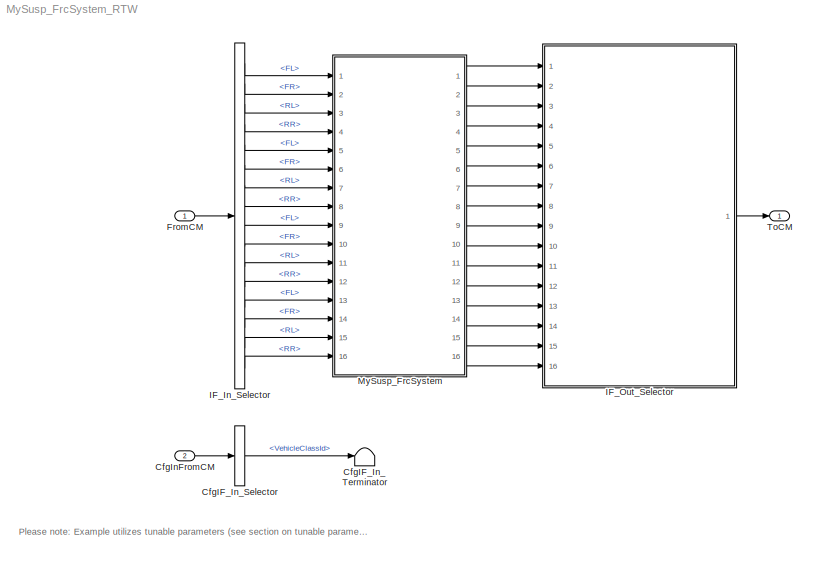
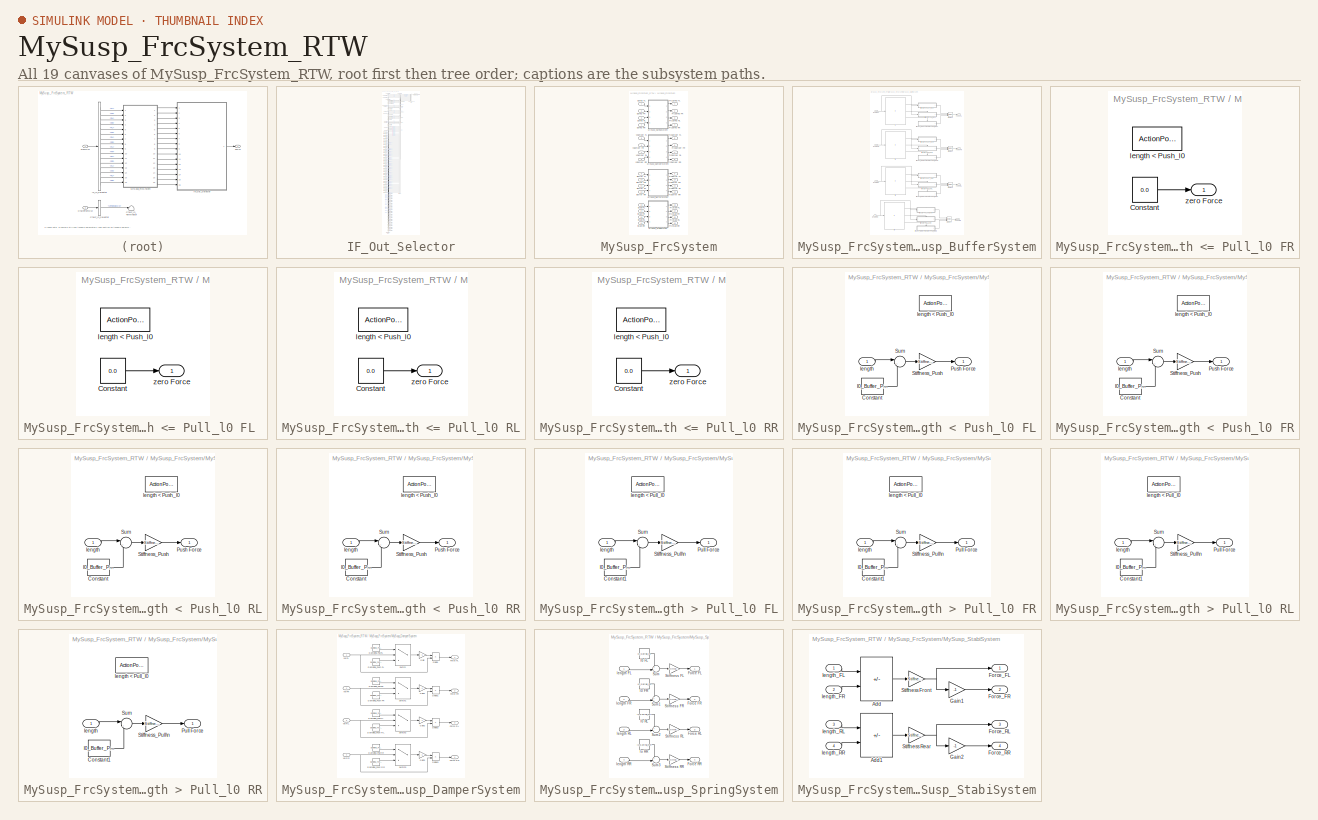
[diagram: thumbnail index - all 19 canvases of the model, root first then tree order]
MODEL MySusp_FrcSystem_RTW
KIND model
CONFIG InitFcn = vehicle = 'Car'; if ~length(which('cmself')), cmenv; end\nMySusp_FrcSystem_RTW_bus
CONFIG PreLoadFcn = vehicle = 'Car'; if ~length(which('cmself')), cmenv; end\nMySusp_FrcSystem_RTW_bus\nMySusp_FrcSystem_RTW_params
BLOCK [BusSelector] CfgIF_In_Selector
  OutputSignals = VehicleClassId
  Ports = [1, 1]
  SID = 9
BLOCK [Terminator] CfgIF_In_Terminator
  SID = 10
BLOCK [Inport] CfgInFromCM
  OutDataTypeStr = Bus: cmSusp_FrcSystemCfgIn
  Port = 2
  SID = 8
BLOCK [Inport] FromCM
  OutDataTypeStr = Bus: cmSusp_FrcSystemIn
  SID = 1
BLOCK [BusSelector] IF_In_Selector
  OutputSignals = lSpring.FL,lSpring.FR,lSpring.RL,lSpring.RR,vDamper.FL,vDamper.FR,vDamper.RL,vDamper.RR,lBuffer.FL,lBuffer.FR,lBuffer.RL,lBuffer.RR,lStabi.FL,lStabi.FR,lStabi.RL,lStabi.RR
  Ports = [1, 16]
  SID = 2
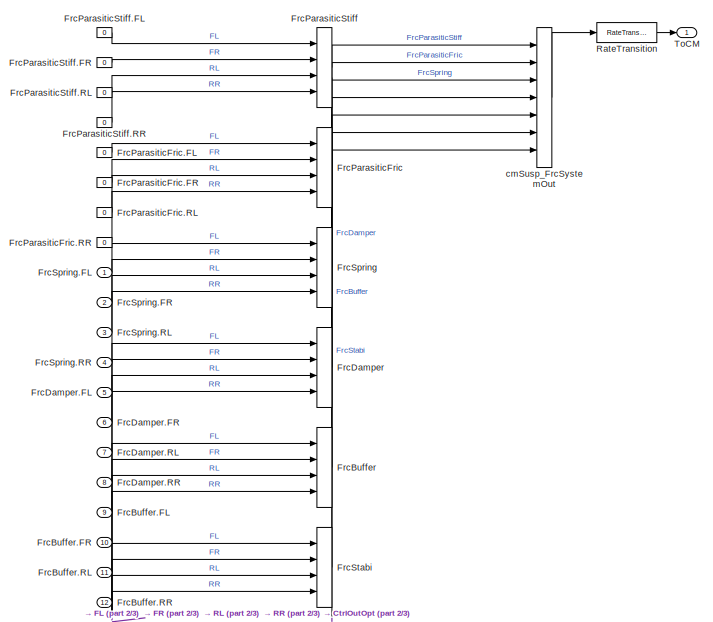
[diagram: IF_Out_Selector - part 1/3, full width, top band]
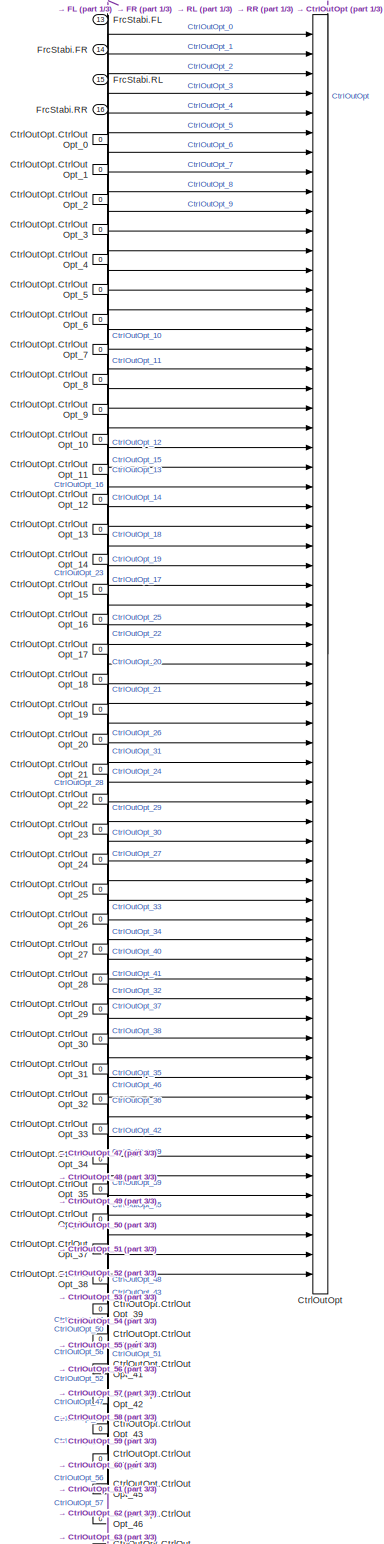
[diagram: IF_Out_Selector - part 2/3, middle left region]
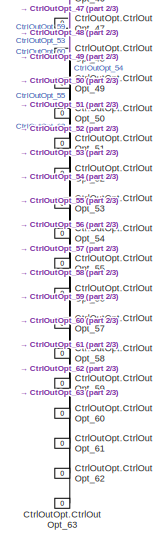
[diagram: IF_Out_Selector - part 3/3, bottom left region]
BLOCK [SubSystem] IF_Out_Selector
  OpenFcn = cmSignalSelect('SignalSelection_CB',gcb)
  Ports = [16, 1]
  RequestExecContextInheritance = off
  SID = 5
  UserData = DataTag0
  UserDataPersistent = on
BLOCK [BusCreator] IF_Out_Selector/CtrlOutOpt
  InheritFromInputs = on
  Inputs = 64
  Ports = [64, 1]
  SID = 42
BLOCK [Constant] IF_Out_Selector/CtrlOutOpt.CtrlOutOpt_0
  SID = 43
  Value = 0
BLOCK [Constant] IF_Out_Selector/CtrlOutOpt.CtrlOutOpt_1
  SID = 44
  Value = 0
BLOCK [Constant] IF_Out_Selector/CtrlOutOpt.CtrlOutOpt_10
  SID = 53
  Value = 0
BLOCK [Constant] IF_Out_Selector/CtrlOutOpt.CtrlOutOpt_11
  SID = 54
  Value = 0
BLOCK [Constant] IF_Out_Selector/CtrlOutOpt.CtrlOutOpt_12
  SID = 55
  Value = 0
BLOCK [Constant] IF_Out_Selector/CtrlOutOpt.CtrlOutOpt_13
  SID = 56
  Value = 0
BLOCK [Constant] IF_Out_Selector/CtrlOutOpt.CtrlOutOpt_14
  SID = 57
  Value = 0
BLOCK [Constant] IF_Out_Selector/CtrlOutOpt.CtrlOutOpt_15
  SID = 58
  Value = 0
BLOCK [Constant] IF_Out_Selector/CtrlOutOpt.CtrlOutOpt_16
  SID = 59
  Value = 0
BLOCK [Constant] IF_Out_Selector/CtrlOutOpt.CtrlOutOpt_17
  SID = 60
  Value = 0
BLOCK [Constant] IF_Out_Selector/CtrlOutOpt.CtrlOutOpt_18
  SID = 61
  Value = 0
BLOCK [Constant] IF_Out_Selector/CtrlOutOpt.CtrlOutOpt_19
  SID = 62
  Value = 0
BLOCK [Constant] IF_Out_Selector/CtrlOutOpt.CtrlOutOpt_2
  SID = 45
  Value = 0
BLOCK [Constant] IF_Out_Selector/CtrlOutOpt.CtrlOutOpt_20
  SID = 63
  Value = 0
BLOCK [Constant] IF_Out_Selector/CtrlOutOpt.CtrlOutOpt_21
  SID = 64
  Value = 0
BLOCK [Constant] IF_Out_Selector/CtrlOutOpt.CtrlOutOpt_22
  SID = 65
  Value = 0
BLOCK [Constant] IF_Out_Selector/CtrlOutOpt.CtrlOutOpt_23
  SID = 66
  Value = 0
BLOCK [Constant] IF_Out_Selector/CtrlOutOpt.CtrlOutOpt_24
  SID = 67
  Value = 0
BLOCK [Constant] IF_Out_Selector/CtrlOutOpt.CtrlOutOpt_25
  SID = 68
  Value = 0
BLOCK [Constant] IF_Out_Selector/CtrlOutOpt.CtrlOutOpt_26
  SID = 69
  Value = 0
BLOCK [Constant] IF_Out_Selector/CtrlOutOpt.CtrlOutOpt_27
  SID = 70
  Value = 0
BLOCK [Constant] IF_Out_Selector/CtrlOutOpt.CtrlOutOpt_28
  SID = 71
  Value = 0
BLOCK [Constant] IF_Out_Selector/CtrlOutOpt.CtrlOutOpt_29
  SID = 72
  Value = 0
BLOCK [Constant] IF_Out_Selector/CtrlOutOpt.CtrlOutOpt_3
  SID = 46
  Value = 0
BLOCK [Constant] IF_Out_Selector/CtrlOutOpt.CtrlOutOpt_30
  SID = 73
  Value = 0
BLOCK [Constant] IF_Out_Selector/CtrlOutOpt.CtrlOutOpt_31
  SID = 74
  Value = 0
BLOCK [Constant] IF_Out_Selector/CtrlOutOpt.CtrlOutOpt_32
  SID = 75
  Value = 0
BLOCK [Constant] IF_Out_Selector/CtrlOutOpt.CtrlOutOpt_33
  SID = 76
  Value = 0
BLOCK [Constant] IF_Out_Selector/CtrlOutOpt.CtrlOutOpt_34
  SID = 77
  Value = 0
BLOCK [Constant] IF_Out_Selector/CtrlOutOpt.CtrlOutOpt_35
  SID = 78
  Value = 0
BLOCK [Constant] IF_Out_Selector/CtrlOutOpt.CtrlOutOpt_36
  SID = 79
  Value = 0
BLOCK [Constant] IF_Out_Selector/CtrlOutOpt.CtrlOutOpt_37
  SID = 80
  Value = 0
BLOCK [Constant] IF_Out_Selector/CtrlOutOpt.CtrlOutOpt_38
  SID = 81
  Value = 0
BLOCK [Constant] IF_Out_Selector/CtrlOutOpt.CtrlOutOpt_39
  SID = 82
  Value = 0
BLOCK [Constant] IF_Out_Selector/CtrlOutOpt.CtrlOutOpt_4
  SID = 47
  Value = 0
BLOCK [Constant] IF_Out_Selector/CtrlOutOpt.CtrlOutOpt_40
  SID = 83
  Value = 0
BLOCK [Constant] IF_Out_Selector/CtrlOutOpt.CtrlOutOpt_41
  SID = 84
  Value = 0
BLOCK [Constant] IF_Out_Selector/CtrlOutOpt.CtrlOutOpt_42
  SID = 85
  Value = 0
BLOCK [Constant] IF_Out_Selector/CtrlOutOpt.CtrlOutOpt_43
  SID = 86
  Value = 0
BLOCK [Constant] IF_Out_Selector/CtrlOutOpt.CtrlOutOpt_44
  SID = 87
  Value = 0
BLOCK [Constant] IF_Out_Selector/CtrlOutOpt.CtrlOutOpt_45
  SID = 88
  Value = 0
BLOCK [Constant] IF_Out_Selector/CtrlOutOpt.CtrlOutOpt_46
  SID = 89
  Value = 0
BLOCK [Constant] IF_Out_Selector/CtrlOutOpt.CtrlOutOpt_47
  SID = 90
  Value = 0
BLOCK [Constant] IF_Out_Selector/CtrlOutOpt.CtrlOutOpt_48
  SID = 91
  Value = 0
BLOCK [Constant] IF_Out_Selector/CtrlOutOpt.CtrlOutOpt_49
  SID = 92
  Value = 0
BLOCK [Constant] IF_Out_Selector/CtrlOutOpt.CtrlOutOpt_5
  SID = 48
  Value = 0
BLOCK [Constant] IF_Out_Selector/CtrlOutOpt.CtrlOutOpt_50
  SID = 93
  Value = 0
BLOCK [Constant] IF_Out_Selector/CtrlOutOpt.CtrlOutOpt_51
  SID = 94
  Value = 0
BLOCK [Constant] IF_Out_Selector/CtrlOutOpt.CtrlOutOpt_52
  SID = 95
  Value = 0
BLOCK [Constant] IF_Out_Selector/CtrlOutOpt.CtrlOutOpt_53
  SID = 96
  Value = 0
BLOCK [Constant] IF_Out_Selector/CtrlOutOpt.CtrlOutOpt_54
  SID = 97
  Value = 0
BLOCK [Constant] IF_Out_Selector/CtrlOutOpt.CtrlOutOpt_55
  SID = 98
  Value = 0
BLOCK [Constant] IF_Out_Selector/CtrlOutOpt.CtrlOutOpt_56
  SID = 99
  Value = 0
BLOCK [Constant] IF_Out_Selector/CtrlOutOpt.CtrlOutOpt_57
  SID = 100
  Value = 0
BLOCK [Constant] IF_Out_Selector/CtrlOutOpt.CtrlOutOpt_58
  SID = 101
  Value = 0
BLOCK [Constant] IF_Out_Selector/CtrlOutOpt.CtrlOutOpt_59
  SID = 102
  Value = 0
BLOCK [Constant] IF_Out_Selector/CtrlOutOpt.CtrlOutOpt_6
  SID = 49
  Value = 0
BLOCK [Constant] IF_Out_Selector/CtrlOutOpt.CtrlOutOpt_60
  SID = 103
  Value = 0
BLOCK [Constant] IF_Out_Selector/CtrlOutOpt.CtrlOutOpt_61
  SID = 104
  Value = 0
BLOCK [Constant] IF_Out_Selector/CtrlOutOpt.CtrlOutOpt_62
  SID = 105
  Value = 0
BLOCK [Constant] IF_Out_Selector/CtrlOutOpt.CtrlOutOpt_63
  SID = 106
  Value = 0
BLOCK [Constant] IF_Out_Selector/CtrlOutOpt.CtrlOutOpt_7
  SID = 50
  Value = 0
BLOCK [Constant] IF_Out_Selector/CtrlOutOpt.CtrlOutOpt_8
  SID = 51
  Value = 0
BLOCK [Constant] IF_Out_Selector/CtrlOutOpt.CtrlOutOpt_9
  SID = 52
  Value = 0
BLOCK [BusCreator] IF_Out_Selector/FrcBuffer
  InheritFromInputs = on
  Inputs = 4
  Ports = [4, 1]
  SID = 32
BLOCK [Inport] IF_Out_Selector/FrcBuffer.FL
  Port = 9
  SID = 506
BLOCK [Inport] IF_Out_Selector/FrcBuffer.FR
  Port = 10
  SID = 507
BLOCK [Inport] IF_Out_Selector/FrcBuffer.RL
  Port = 11
  SID = 508
BLOCK [Inport] IF_Out_Selector/FrcBuffer.RR
  Port = 12
  SID = 509
BLOCK [BusCreator] IF_Out_Selector/FrcDamper
  InheritFromInputs = on
  Inputs = 4
  Ports = [4, 1]
  SID = 27
BLOCK [Inport] IF_Out_Selector/FrcDamper.FL
  Port = 5
  SID = 502
BLOCK [Inport] IF_Out_Selector/FrcDamper.FR
  Port = 6
  SID = 503
BLOCK [Inport] IF_Out_Selector/FrcDamper.RL
  Port = 7
  SID = 504
BLOCK [Inport] IF_Out_Selector/FrcDamper.RR
  Port = 8
  SID = 505
BLOCK [BusCreator] IF_Out_Selector/FrcParasiticFric
  InheritFromInputs = on
  Inputs = 4
  Ports = [4, 1]
  SID = 17
BLOCK [Constant] IF_Out_Selector/FrcParasiticFric.FL
  SID = 18
  Value = 0
BLOCK [Constant] IF_Out_Selector/FrcParasiticFric.FR
  SID = 19
  Value = 0
BLOCK [Constant] IF_Out_Selector/FrcParasiticFric.RL
  SID = 20
  Value = 0
BLOCK [Constant] IF_Out_Selector/FrcParasiticFric.RR
  SID = 21
  Value = 0
BLOCK [BusCreator] IF_Out_Selector/FrcParasiticStiff
  InheritFromInputs = on
  Inputs = 4
  Ports = [4, 1]
  SID = 12
BLOCK [Constant] IF_Out_Selector/FrcParasiticStiff.FL
  SID = 13
  Value = 0
BLOCK [Constant] IF_Out_Selector/FrcParasiticStiff.FR
  SID = 14
  Value = 0
BLOCK [Constant] IF_Out_Selector/FrcParasiticStiff.RL
  SID = 15
  Value = 0
BLOCK [Constant] IF_Out_Selector/FrcParasiticStiff.RR
  SID = 16
  Value = 0
BLOCK [BusCreator] IF_Out_Selector/FrcSpring
  InheritFromInputs = on
  Inputs = 4
  Ports = [4, 1]
  SID = 22
BLOCK [Inport] IF_Out_Selector/FrcSpring.FL
  SID = 498
BLOCK [Inport] IF_Out_Selector/FrcSpring.FR
  Port = 2
  SID = 499
BLOCK [Inport] IF_Out_Selector/FrcSpring.RL
  Port = 3
  SID = 500
BLOCK [Inport] IF_Out_Selector/FrcSpring.RR
  Port = 4
  SID = 501
BLOCK [BusCreator] IF_Out_Selector/FrcStabi
  InheritFromInputs = on
  Inputs = 4
  Ports = [4, 1]
  SID = 37
BLOCK [Inport] IF_Out_Selector/FrcStabi.FL
  Port = 13
  SID = 510
BLOCK [Inport] IF_Out_Selector/FrcStabi.FR
  Port = 14
  SID = 511
BLOCK [Inport] IF_Out_Selector/FrcStabi.RL
  Port = 15
  SID = 512
BLOCK [Inport] IF_Out_Selector/FrcStabi.RR
  Port = 16
  SID = 513
BLOCK [RateTransition] IF_Out_Selector/RateTransition
  OutPortSampleTime = str2num(get_param(bdroot,'FixedStep'))
  SID = 6
BLOCK [Outport] IF_Out_Selector/ToCM
  SID = 7
BLOCK [BusCreator] IF_Out_Selector/cmSusp_FrcSystemOut
  InheritFromInputs = on
  Inputs = 7
  Ports = [7, 1]
  SID = 11
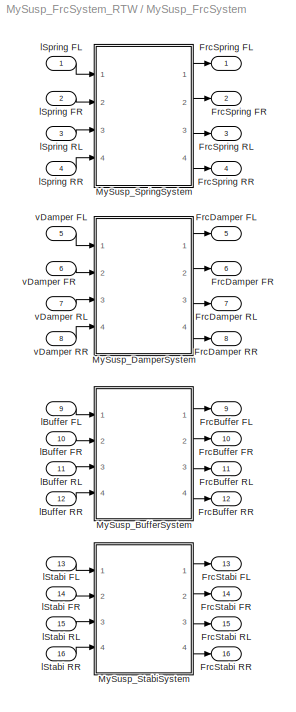
BLOCK [SubSystem] MySusp_FrcSystem
  Ports = [16, 16]
  RequestExecContextInheritance = off
  SID = 297
BLOCK [Outport] MySusp_FrcSystem/FrcBuffer FL
  Port = 9
  SID = 490
BLOCK [Outport] MySusp_FrcSystem/FrcBuffer FR
  Port = 10
  SID = 491
BLOCK [Outport] MySusp_FrcSystem/FrcBuffer RL
  Port = 11
  SID = 492
BLOCK [Outport] MySusp_FrcSystem/FrcBuffer RR
  Port = 12
  SID = 493
BLOCK [Outport] MySusp_FrcSystem/FrcDamper FL
  Port = 5
  SID = 486
BLOCK [Outport] MySusp_FrcSystem/FrcDamper FR
  Port = 6
  SID = 487
BLOCK [Outport] MySusp_FrcSystem/FrcDamper RL
  Port = 7
  SID = 488
BLOCK [Outport] MySusp_FrcSystem/FrcDamper RR
  Port = 8
  SID = 489
BLOCK [Outport] MySusp_FrcSystem/FrcSpring FL
  SID = 482
BLOCK [Outport] MySusp_FrcSystem/FrcSpring FR
  Port = 2
  SID = 483
BLOCK [Outport] MySusp_FrcSystem/FrcSpring RL
  Port = 3
  SID = 484
BLOCK [Outport] MySusp_FrcSystem/FrcSpring RR
  Port = 4
  SID = 485
BLOCK [Outport] MySusp_FrcSystem/FrcStabi FL
  Port = 13
  SID = 494
BLOCK [Outport] MySusp_FrcSystem/FrcStabi FR
  Port = 14
  SID = 495
BLOCK [Outport] MySusp_FrcSystem/FrcStabi RL
  Port = 15
  SID = 496
BLOCK [Outport] MySusp_FrcSystem/FrcStabi RR
  Port = 16
  SID = 497
BLOCK [SubSystem] MySusp_FrcSystem/MySusp_BufferSystem
  Ports = [4, 4]
  RequestExecContextInheritance = off
  SID = 328
BLOCK [Outport] MySusp_FrcSystem/MySusp_BufferSystem/Force FL
  SID = 413
  VectorParamsAs1DForOutWhenUnconnected = off
BLOCK [Outport] MySusp_FrcSystem/MySusp_BufferSystem/Force FR
  Port = 2
  SID = 414
  VectorParamsAs1DForOutWhenUnconnected = off
BLOCK [Outport] MySusp_FrcSystem/MySusp_BufferSystem/Force RL
  Port = 3
  SID = 415
  VectorParamsAs1DForOutWhenUnconnected = off
BLOCK [Outport] MySusp_FrcSystem/MySusp_BufferSystem/Force RR
  Port = 4
  SID = 416
  VectorParamsAs1DForOutWhenUnconnected = off
BLOCK [If] MySusp_FrcSystem/MySusp_BufferSystem/If
  ElseIfExpressions = u1 > l0_Buffer_Pull_FL
  IfExpression = u1 < l0_Buffer_Push_FL
  Ports = [1, 3]
  SID = 333
BLOCK [SubSystem] MySusp_FrcSystem/MySusp_BufferSystem/If Push_l0  FR <=length <= Pull_l0 FR
  Ports = [0, 1, 0, 0, 0, 0, 0, 1]
  RequestExecContextInheritance = off
  SID = 334
  TreatAsAtomicUnit = on
BLOCK [Constant] MySusp_FrcSystem/MySusp_BufferSystem/If Push_l0  FR <=length <= Pull_l0 FR/Constant
  SID = 336
  Value = 0.0
BLOCK [ActionPort] MySusp_FrcSystem/MySusp_BufferSystem/If Push_l0  FR <=length <= Pull_l0 FR/length < Push_l0
  ActionPortLabel = else
  SID = 335
BLOCK [Outport] MySusp_FrcSystem/MySusp_BufferSystem/If Push_l0  FR <=length <= Pull_l0 FR/zero Force
  InitialOutput = 0
  SID = 337
  VectorParamsAs1DForOutWhenUnconnected = off
BLOCK [SubSystem] MySusp_FrcSystem/MySusp_BufferSystem/If Push_l0 FL <=length <= Pull_l0 FL 
  Ports = [0, 1, 0, 0, 0, 0, 0, 1]
  RequestExecContextInheritance = off
  SID = 338
  TreatAsAtomicUnit = on
BLOCK [Constant] MySusp_FrcSystem/MySusp_BufferSystem/If Push_l0 FL <=length <= Pull_l0 FL /Constant
  SID = 340
  Value = 0.0
BLOCK [ActionPort] MySusp_FrcSystem/MySusp_BufferSystem/If Push_l0 FL <=length <= Pull_l0 FL /length < Push_l0
  ActionPortLabel = else
  SID = 339
BLOCK [Outport] MySusp_FrcSystem/MySusp_BufferSystem/If Push_l0 FL <=length <= Pull_l0 FL /zero Force
  InitialOutput = 0
  SID = 341
  VectorParamsAs1DForOutWhenUnconnected = off
BLOCK [SubSystem] MySusp_FrcSystem/MySusp_BufferSystem/If Push_l0 RL <=length <= Pull_l0 RL
  Ports = [0, 1, 0, 0, 0, 0, 0, 1]
  RequestExecContextInheritance = off
  SID = 342
  TreatAsAtomicUnit = on
BLOCK [Constant] MySusp_FrcSystem/MySusp_BufferSystem/If Push_l0 RL <=length <= Pull_l0 RL/Constant
  SID = 344
  Value = 0.0
BLOCK [ActionPort] MySusp_FrcSystem/MySusp_BufferSystem/If Push_l0 RL <=length <= Pull_l0 RL/length < Push_l0
  ActionPortLabel = else
  SID = 343
BLOCK [Outport] MySusp_FrcSystem/MySusp_BufferSystem/If Push_l0 RL <=length <= Pull_l0 RL/zero Force
  InitialOutput = 0
  SID = 345
  VectorParamsAs1DForOutWhenUnconnected = off
BLOCK [SubSystem] MySusp_FrcSystem/MySusp_BufferSystem/If Push_l0 RR<=length <= Pull_l0 RR
  Ports = [0, 1, 0, 0, 0, 0, 0, 1]
  RequestExecContextInheritance = off
  SID = 346
  TreatAsAtomicUnit = on
BLOCK [Constant] MySusp_FrcSystem/MySusp_BufferSystem/If Push_l0 RR<=length <= Pull_l0 RR/Constant
  SID = 348
  Value = 0.0
BLOCK [ActionPort] MySusp_FrcSystem/MySusp_BufferSystem/If Push_l0 RR<=length <= Pull_l0 RR/length < Push_l0
  ActionPortLabel = else
  SID = 347
BLOCK [Outport] MySusp_FrcSystem/MySusp_BufferSystem/If Push_l0 RR<=length <= Pull_l0 RR/zero Force
  InitialOutput = 0
  SID = 349
  VectorParamsAs1DForOutWhenUnconnected = off
BLOCK [SubSystem] MySusp_FrcSystem/MySusp_BufferSystem/If length < Push_l0 FL
  Ports = [1, 1, 0, 0, 0, 0, 0, 1]
  RequestExecContextInheritance = off
  SID = 350
  TreatAsAtomicUnit = on
BLOCK [Constant] MySusp_FrcSystem/MySusp_BufferSystem/If length < Push_l0 FL/Constant
  SID = 353
  Value = l0_Buffer_Push_FL
BLOCK [Outport] MySusp_FrcSystem/MySusp_BufferSystem/If length < Push_l0 FL/Push Force
  InitialOutput = 0
  SID = 356
  VectorParamsAs1DForOutWhenUnconnected = off
BLOCK [Gain] MySusp_FrcSystem/MySusp_BufferSystem/If length < Push_l0 FL/Stiffness_Push
  Gain = Stiffness_Buffer_Push_FL
  SID = 354
BLOCK [Sum] MySusp_FrcSystem/MySusp_BufferSystem/If length < Push_l0 FL/Sum
  Inputs = |-+
  Ports = [2, 1]
  SID = 355
BLOCK [Inport] MySusp_FrcSystem/MySusp_BufferSystem/If length < Push_l0 FL/length
  SID = 351
BLOCK [ActionPort] MySusp_FrcSystem/MySusp_BufferSystem/If length < Push_l0 FL/length < Push_l0
  ActionPortLabel = if(u1 < l0_Buffer_Push_FL)
  SID = 352
BLOCK [SubSystem] MySusp_FrcSystem/MySusp_BufferSystem/If length < Push_l0 FR
  Ports = [1, 1, 0, 0, 0, 0, 0, 1]
  RequestExecContextInheritance = off
  SID = 357
  TreatAsAtomicUnit = on
BLOCK [Constant] MySusp_FrcSystem/MySusp_BufferSystem/If length < Push_l0 FR/Constant
  SID = 360
  Value = l0_Buffer_Push_FR
BLOCK [Outport] MySusp_FrcSystem/MySusp_BufferSystem/If length < Push_l0 FR/Push Force
  InitialOutput = 0
  SID = 363
  VectorParamsAs1DForOutWhenUnconnected = off
BLOCK [Gain] MySusp_FrcSystem/MySusp_BufferSystem/If length < Push_l0 FR/Stiffness_Push
  Gain = Stiffness_Buffer_Push_FR
  SID = 361
BLOCK [Sum] MySusp_FrcSystem/MySusp_BufferSystem/If length < Push_l0 FR/Sum
  Inputs = |-+
  Ports = [2, 1]
  SID = 362
BLOCK [Inport] MySusp_FrcSystem/MySusp_BufferSystem/If length < Push_l0 FR/length
  SID = 358
BLOCK [ActionPort] MySusp_FrcSystem/MySusp_BufferSystem/If length < Push_l0 FR/length < Push_l0
  ActionPortLabel = if(u1 < l0_Buffer_Push_FR)
  SID = 359
BLOCK [SubSystem] MySusp_FrcSystem/MySusp_BufferSystem/If length < Push_l0 RL
  Ports = [1, 1, 0, 0, 0, 0, 0, 1]
  RequestExecContextInheritance = off
  SID = 364
  TreatAsAtomicUnit = on
BLOCK [Constant] MySusp_FrcSystem/MySusp_BufferSystem/If length < Push_l0 RL/Constant
  SID = 367
  Value = l0_Buffer_Push_RL
BLOCK [Outport] MySusp_FrcSystem/MySusp_BufferSystem/If length < Push_l0 RL/Push Force
  InitialOutput = 0
  SID = 370
  VectorParamsAs1DForOutWhenUnconnected = off
BLOCK [Gain] MySusp_FrcSystem/MySusp_BufferSystem/If length < Push_l0 RL/Stiffness_Push
  Gain = Stiffness_Buffer_Push_RL
  SID = 368
BLOCK [Sum] MySusp_FrcSystem/MySusp_BufferSystem/If length < Push_l0 RL/Sum
  Inputs = |-+
  Ports = [2, 1]
  SID = 369
BLOCK [Inport] MySusp_FrcSystem/MySusp_BufferSystem/If length < Push_l0 RL/length
  SID = 365
BLOCK [ActionPort] MySusp_FrcSystem/MySusp_BufferSystem/If length < Push_l0 RL/length < Push_l0
  ActionPortLabel = if(u1 < l0_Buffer_Push_RL)
  SID = 366
BLOCK [SubSystem] MySusp_FrcSystem/MySusp_BufferSystem/If length < Push_l0 RR
  Ports = [1, 1, 0, 0, 0, 0, 0, 1]
  RequestExecContextInheritance = off
  SID = 371
  TreatAsAtomicUnit = on
BLOCK [Constant] MySusp_FrcSystem/MySusp_BufferSystem/If length < Push_l0 RR/Constant
  SID = 374
  Value = l0_Buffer_Push_RR
BLOCK [Outport] MySusp_FrcSystem/MySusp_BufferSystem/If length < Push_l0 RR/Push Force
  InitialOutput = 0
  SID = 377
  VectorParamsAs1DForOutWhenUnconnected = off
BLOCK [Gain] MySusp_FrcSystem/MySusp_BufferSystem/If length < Push_l0 RR/Stiffness_Push
  Gain = Stiffness_Buffer_Push_RR
  SID = 375
BLOCK [Sum] MySusp_FrcSystem/MySusp_BufferSystem/If length < Push_l0 RR/Sum
  Inputs = |-+
  Ports = [2, 1]
  SID = 376
BLOCK [Inport] MySusp_FrcSystem/MySusp_BufferSystem/If length < Push_l0 RR/length
  SID = 372
BLOCK [ActionPort] MySusp_FrcSystem/MySusp_BufferSystem/If length < Push_l0 RR/length < Push_l0
  ActionPortLabel = if(u1 < l0_Buffer_Push_RR)
  SID = 373
BLOCK [SubSystem] MySusp_FrcSystem/MySusp_BufferSystem/If length > Pull_l0 FL
  Ports = [1, 1, 0, 0, 0, 0, 0, 1]
  RequestExecContextInheritance = off
  SID = 378
  TreatAsAtomicUnit = on
BLOCK [Constant] MySusp_FrcSystem/MySusp_BufferSystem/If length > Pull_l0 FL/Constant1
  SID = 381
  Value = l0_Buffer_Pull_FL
BLOCK [Outport] MySusp_FrcSystem/MySusp_BufferSystem/If length > Pull_l0 FL/Pull Force
  InitialOutput = 0
  SID = 384
  VectorParamsAs1DForOutWhenUnconnected = off
BLOCK [Gain] MySusp_FrcSystem/MySusp_BufferSystem/If length > Pull_l0 FL/Stiffness_Pull\n
  Gain = Stiffness_Buffer_Pull_FL
  SID = 382
BLOCK [Sum] MySusp_FrcSystem/MySusp_BufferSystem/If length > Pull_l0 FL/Sum
  Inputs = |-+
  Ports = [2, 1]
  SID = 383
BLOCK [Inport] MySusp_FrcSystem/MySusp_BufferSystem/If length > Pull_l0 FL/length
  SID = 379
BLOCK [ActionPort] MySusp_FrcSystem/MySusp_BufferSystem/If length > Pull_l0 FL/length < Pull_l0
  ActionPortLabel = elseif(u1 > l0_Buffer_Pull_FL)
  SID = 380
BLOCK [SubSystem] MySusp_FrcSystem/MySusp_BufferSystem/If length > Pull_l0 FR
  Ports = [1, 1, 0, 0, 0, 0, 0, 1]
  RequestExecContextInheritance = off
  SID = 385
  TreatAsAtomicUnit = on
BLOCK [Constant] MySusp_FrcSystem/MySusp_BufferSystem/If length > Pull_l0 FR/Constant1
  SID = 388
  Value = l0_Buffer_Pull_FR
BLOCK [Outport] MySusp_FrcSystem/MySusp_BufferSystem/If length > Pull_l0 FR/Pull Force
  InitialOutput = 0
  SID = 391
  VectorParamsAs1DForOutWhenUnconnected = off
BLOCK [Gain] MySusp_FrcSystem/MySusp_BufferSystem/If length > Pull_l0 FR/Stiffness_Pull\n
  Gain = Stiffness_Buffer_Pull_FR
  SID = 389
BLOCK [Sum] MySusp_FrcSystem/MySusp_BufferSystem/If length > Pull_l0 FR/Sum
  Inputs = |-+
  Ports = [2, 1]
  SID = 390
BLOCK [Inport] MySusp_FrcSystem/MySusp_BufferSystem/If length > Pull_l0 FR/length
  SID = 386
BLOCK [ActionPort] MySusp_FrcSystem/MySusp_BufferSystem/If length > Pull_l0 FR/length < Pull_l0
  ActionPortLabel = elseif(u1 > l0_Buffer_Pull_FR)
  SID = 387
BLOCK [SubSystem] MySusp_FrcSystem/MySusp_BufferSystem/If length > Pull_l0 RL
  Ports = [1, 1, 0, 0, 0, 0, 0, 1]
  RequestExecContextInheritance = off
  SID = 392
  TreatAsAtomicUnit = on
BLOCK [Constant] MySusp_FrcSystem/MySusp_BufferSystem/If length > Pull_l0 RL/Constant1
  SID = 395
  Value = l0_Buffer_Pull_RL
BLOCK [Outport] MySusp_FrcSystem/MySusp_BufferSystem/If length > Pull_l0 RL/Pull Force
  InitialOutput = 0
  SID = 398
  VectorParamsAs1DForOutWhenUnconnected = off
BLOCK [Gain] MySusp_FrcSystem/MySusp_BufferSystem/If length > Pull_l0 RL/Stiffness_Pull\n
  Gain = Stiffness_Buffer_Pull_RL
  SID = 396
BLOCK [Sum] MySusp_FrcSystem/MySusp_BufferSystem/If length > Pull_l0 RL/Sum
  Inputs = |-+
  Ports = [2, 1]
  SID = 397
BLOCK [Inport] MySusp_FrcSystem/MySusp_BufferSystem/If length > Pull_l0 RL/length
  SID = 393
BLOCK [ActionPort] MySusp_FrcSystem/MySusp_BufferSystem/If length > Pull_l0 RL/length < Pull_l0
  ActionPortLabel = elseif(u1 > l0_Buffer_Pull_RL)
  SID = 394
BLOCK [SubSystem] MySusp_FrcSystem/MySusp_BufferSystem/If length > Pull_l0 RR
  Ports = [1, 1, 0, 0, 0, 0, 0, 1]
  RequestExecContextInheritance = off
  SID = 399
  TreatAsAtomicUnit = on
BLOCK [Constant] MySusp_FrcSystem/MySusp_BufferSystem/If length > Pull_l0 RR/Constant1
  SID = 402
  Value = l0_Buffer_Pull_RR
BLOCK [Outport] MySusp_FrcSystem/MySusp_BufferSystem/If length > Pull_l0 RR/Pull Force
  InitialOutput = 0
  SID = 405
  VectorParamsAs1DForOutWhenUnconnected = off
BLOCK [Gain] MySusp_FrcSystem/MySusp_BufferSystem/If length > Pull_l0 RR/Stiffness_Pull\n
  Gain = Stiffness_Buffer_Pull_RR
  SID = 403
BLOCK [Sum] MySusp_FrcSystem/MySusp_BufferSystem/If length > Pull_l0 RR/Sum
  Inputs = |-+
  Ports = [2, 1]
  SID = 404
BLOCK [Inport] MySusp_FrcSystem/MySusp_BufferSystem/If length > Pull_l0 RR/length
  SID = 400
BLOCK [ActionPort] MySusp_FrcSystem/MySusp_BufferSystem/If length > Pull_l0 RR/length < Pull_l0
  ActionPortLabel = elseif(u1 > l0_Buffer_Pull_RR)
  SID = 401
BLOCK [If] MySusp_FrcSystem/MySusp_BufferSystem/If1
  ElseIfExpressions = u1 > l0_Buffer_Pull_FR
  IfExpression = u1 < l0_Buffer_Push_FR
  Ports = [1, 3]
  SID = 406
BLOCK [If] MySusp_FrcSystem/MySusp_BufferSystem/If2
  ElseIfExpressions = u1 > l0_Buffer_Pull_RL
  IfExpression = u1 < l0_Buffer_Push_RL
  Ports = [1, 3]
  SID = 407
BLOCK [If] MySusp_FrcSystem/MySusp_BufferSystem/If3
  ElseIfExpressions = u1 > l0_Buffer_Pull_RR
  IfExpression = u1 < l0_Buffer_Push_RR
  Ports = [1, 3]
  SID = 408
BLOCK [Merge] MySusp_FrcSystem/MySusp_BufferSystem/Merge1
  Inputs = 3
  Ports = [3, 1]
  SID = 409
BLOCK [Merge] MySusp_FrcSystem/MySusp_BufferSystem/Merge2
  Inputs = 3
  Ports = [3, 1]
  SID = 410
BLOCK [Merge] MySusp_FrcSystem/MySusp_BufferSystem/Merge3
  Inputs = 3
  Ports = [3, 1]
  SID = 411
BLOCK [Merge] MySusp_FrcSystem/MySusp_BufferSystem/Merge4
  Inputs = 3
  Ports = [3, 1]
  SID = 412
BLOCK [Inport] MySusp_FrcSystem/MySusp_BufferSystem/length FL
  SID = 329
BLOCK [Inport] MySusp_FrcSystem/MySusp_BufferSystem/length FR
  Port = 2
  SID = 331
BLOCK [Inport] MySusp_FrcSystem/MySusp_BufferSystem/length RL
  Port = 3
  SID = 330
BLOCK [Inport] MySusp_FrcSystem/MySusp_BufferSystem/length RR
  Port = 4
  SID = 332
BLOCK [SubSystem] MySusp_FrcSystem/MySusp_DamperSystem
  Ports = [4, 4]
  RequestExecContextInheritance = off
  SID = 417
BLOCK [Constant] MySusp_FrcSystem/MySusp_DamperSystem/Damping_Pull FL
  SID = 422
  Value = Damping_Pull_FL
BLOCK [Constant] MySusp_FrcSystem/MySusp_DamperSystem/Damping_Pull FR
  SID = 423
  Value = Damping_Pull_FR
BLOCK [Constant] MySusp_FrcSystem/MySusp_DamperSystem/Damping_Pull RL
  SID = 424
  Value = Damping_Pull_RL
BLOCK [Constant] MySusp_FrcSystem/MySusp_DamperSystem/Damping_Pull RR
  SID = 425
  Value = Damping_Pull_RR
BLOCK [Constant] MySusp_FrcSystem/MySusp_DamperSystem/Damping_Push FL
  SID = 426
  Value = Damping_Push_FL
BLOCK [Constant] MySusp_FrcSystem/MySusp_DamperSystem/Damping_Push FR
  SID = 427
  Value = Damping_Push_FR
BLOCK [Constant] MySusp_FrcSystem/MySusp_DamperSystem/Damping_Push RL
  SID = 428
  Value = Damping_Push_RL
BLOCK [Constant] MySusp_FrcSystem/MySusp_DamperSystem/Damping_Push RR
  SID = 429
  Value = Damping_Push_RR
BLOCK [Product] MySusp_FrcSystem/MySusp_DamperSystem/Divide
  Inputs = **
  Ports = [2, 1]
  SID = 430
BLOCK [Product] MySusp_FrcSystem/MySusp_DamperSystem/Divide1
  Inputs = **
  Ports = [2, 1]
  SID = 431
BLOCK [Product] MySusp_FrcSystem/MySusp_DamperSystem/Divide2
  Inputs = **
  Ports = [2, 1]
  SID = 432
BLOCK [Product] MySusp_FrcSystem/MySusp_DamperSystem/Divide3
  Inputs = **
  Ports = [2, 1]
  SID = 433
BLOCK [Outport] MySusp_FrcSystem/MySusp_DamperSystem/Force FL
  SID = 442
  VectorParamsAs1DForOutWhenUnconnected = off
BLOCK [Outport] MySusp_FrcSystem/MySusp_DamperSystem/Force FR
  Port = 2
  SID = 443
  VectorParamsAs1DForOutWhenUnconnected = off
BLOCK [Outport] MySusp_FrcSystem/MySusp_DamperSystem/Force RL
  Port = 3
  SID = 444
  VectorParamsAs1DForOutWhenUnconnected = off
BLOCK [Outport] MySusp_FrcSystem/MySusp_DamperSystem/Force RR
  Port = 4
  SID = 445
  VectorParamsAs1DForOutWhenUnconnected = off
BLOCK [Gain] MySusp_FrcSystem/MySusp_DamperSystem/Gain
  Gain = -1
  SID = 434
BLOCK [Gain] MySusp_FrcSystem/MySusp_DamperSystem/Gain1
  Gain = -1
  SID = 435
BLOCK [Gain] MySusp_FrcSystem/MySusp_DamperSystem/Gain2
  Gain = -1
  SID = 436
BLOCK [Gain] MySusp_FrcSystem/MySusp_DamperSystem/Gain3
  Gain = -1
  SID = 437
BLOCK [Switch] MySusp_FrcSystem/MySusp_DamperSystem/Switch
  InputSameDT = off
  SID = 438
  SaturateOnIntegerOverflow = off
BLOCK [Switch] MySusp_FrcSystem/MySusp_DamperSystem/Switch1
  InputSameDT = off
  SID = 439
  SaturateOnIntegerOverflow = off
BLOCK [Switch] MySusp_FrcSystem/MySusp_DamperSystem/Switch2
  InputSameDT = off
  SID = 440
  SaturateOnIntegerOverflow = off
BLOCK [Switch] MySusp_FrcSystem/MySusp_DamperSystem/Switch3
  InputSameDT = off
  SID = 441
  SaturateOnIntegerOverflow = off
BLOCK [Inport] MySusp_FrcSystem/MySusp_DamperSystem/vel FL
  SID = 418
BLOCK [Inport] MySusp_FrcSystem/MySusp_DamperSystem/vel FR
  Port = 2
  SID = 419
BLOCK [Inport] MySusp_FrcSystem/MySusp_DamperSystem/vel RL
  Port = 3
  SID = 420
BLOCK [Inport] MySusp_FrcSystem/MySusp_DamperSystem/vel RR
  Port = 4
  SID = 421
BLOCK [SubSystem] MySusp_FrcSystem/MySusp_SpringSystem
  Ports = [4, 4]
  RequestExecContextInheritance = off
  SID = 446
BLOCK [Outport] MySusp_FrcSystem/MySusp_SpringSystem/Force FL
  SID = 463
  VectorParamsAs1DForOutWhenUnconnected = off
BLOCK [Outport] MySusp_FrcSystem/MySusp_SpringSystem/Force FR
  Port = 2
  SID = 464
  VectorParamsAs1DForOutWhenUnconnected = off
BLOCK [Outport] MySusp_FrcSystem/MySusp_SpringSystem/Force RL
  Port = 3
  SID = 465
  VectorParamsAs1DForOutWhenUnconnected = off
BLOCK [Outport] MySusp_FrcSystem/MySusp_SpringSystem/Force RR
  Port = 4
  SID = 466
  VectorParamsAs1DForOutWhenUnconnected = off
BLOCK [Gain] MySusp_FrcSystem/MySusp_SpringSystem/Stiffness FL
  Gain = Stiffness_Spring_FL
  SID = 451
BLOCK [Gain] MySusp_FrcSystem/MySusp_SpringSystem/Stiffness FR
  Gain = Stiffness_Spring_FR
  SID = 452
BLOCK [Gain] MySusp_FrcSystem/MySusp_SpringSystem/Stiffness RL
  Gain = Stiffness_Spring_RL
  SID = 453
BLOCK [Gain] MySusp_FrcSystem/MySusp_SpringSystem/Stiffness RR
  Gain = Stiffness_Spring_RR
  SID = 454
BLOCK [Sum] MySusp_FrcSystem/MySusp_SpringSystem/Sum
  Inputs = +-|
  Ports = [2, 1]
  SID = 455
BLOCK [Sum] MySusp_FrcSystem/MySusp_SpringSystem/Sum1
  Inputs = +-|
  Ports = [2, 1]
  SID = 456
BLOCK [Sum] MySusp_FrcSystem/MySusp_SpringSystem/Sum2
  Inputs = +-|
  Ports = [2, 1]
  SID = 457
BLOCK [Sum] MySusp_FrcSystem/MySusp_SpringSystem/Sum3
  Inputs = +-|
  Ports = [2, 1]
  SID = 458
BLOCK [Constant] MySusp_FrcSystem/MySusp_SpringSystem/l0 FL
  SID = 459
  Value = l0_Spring_FL
BLOCK [Constant] MySusp_FrcSystem/MySusp_SpringSystem/l0 FR
  SID = 460
  Value = l0_Spring_FR
BLOCK [Constant] MySusp_FrcSystem/MySusp_SpringSystem/l0 RL
  SID = 461
  Value = l0_Spring_RL
BLOCK [Inport] MySusp_FrcSystem/MySusp_SpringSystem/length FL
  SID = 447
BLOCK [Inport] MySusp_FrcSystem/MySusp_SpringSystem/length FR
  Port = 2
  SID = 448
BLOCK [Inport] MySusp_FrcSystem/MySusp_SpringSystem/length RL
  Port = 3
  SID = 449
BLOCK [Inport] MySusp_FrcSystem/MySusp_SpringSystem/length RR
  Port = 4
  SID = 450
BLOCK [Constant] MySusp_FrcSystem/MySusp_SpringSystem/lo RR
  SID = 462
  Value = l0_Spring_RR
BLOCK [SubSystem] MySusp_FrcSystem/MySusp_StabiSystem
  Ports = [4, 4]
  RequestExecContextInheritance = off
  SID = 467
BLOCK [Sum] MySusp_FrcSystem/MySusp_StabiSystem/Add
  IconShape = rectangular
  Inputs = -+
  Ports = [2, 1]
  SID = 472
BLOCK [Sum] MySusp_FrcSystem/MySusp_StabiSystem/Add1
  IconShape = rectangular
  Inputs = -+
  Ports = [2, 1]
  SID = 473
BLOCK [Outport] MySusp_FrcSystem/MySusp_StabiSystem/Force_FL
  SID = 478
  VectorParamsAs1DForOutWhenUnconnected = off
BLOCK [Outport] MySusp_FrcSystem/MySusp_StabiSystem/Force_FR
  Port = 2
  SID = 479
  VectorParamsAs1DForOutWhenUnconnected = off
BLOCK [Outport] MySusp_FrcSystem/MySusp_StabiSystem/Force_RL
  Port = 3
  SID = 480
  VectorParamsAs1DForOutWhenUnconnected = off
BLOCK [Outport] MySusp_FrcSystem/MySusp_StabiSystem/Force_RR
  Port = 4
  SID = 481
  VectorParamsAs1DForOutWhenUnconnected = off
BLOCK [Gain] MySusp_FrcSystem/MySusp_StabiSystem/Gain1
  Gain = -1
  SID = 474
BLOCK [Gain] MySusp_FrcSystem/MySusp_StabiSystem/Gain2
  Gain = -1
  SID = 475
BLOCK [Inport] MySusp_FrcSystem/MySusp_StabiSystem/Iength_FL
  SID = 468
BLOCK [Inport] MySusp_FrcSystem/MySusp_StabiSystem/Iength_RL
  Port = 3
  SID = 470
BLOCK [Gain] MySusp_FrcSystem/MySusp_StabiSystem/Stiffness Front
  Gain = Stiffness_Stabi_F
  SID = 476
BLOCK [Gain] MySusp_FrcSystem/MySusp_StabiSystem/Stiffness Rear
  Gain = Stiffness_Stabi_R
  SID = 477
BLOCK [Inport] MySusp_FrcSystem/MySusp_StabiSystem/length_FR
  Port = 2
  SID = 469
BLOCK [Inport] MySusp_FrcSystem/MySusp_StabiSystem/length_RR
  Port = 4
  SID = 471
BLOCK [Inport] MySusp_FrcSystem/lBuffer FL
  Port = 9
  SID = 320
BLOCK [Inport] MySusp_FrcSystem/lBuffer FR
  Port = 10
  SID = 321
BLOCK [Inport] MySusp_FrcSystem/lBuffer RL
  Port = 11
  SID = 322
BLOCK [Inport] MySusp_FrcSystem/lBuffer RR
  Port = 12
  SID = 323
BLOCK [Inport] MySusp_FrcSystem/lSpring FL
  SID = 312
BLOCK [Inport] MySusp_FrcSystem/lSpring FR
  Port = 2
  SID = 313
BLOCK [Inport] MySusp_FrcSystem/lSpring RL
  Port = 3
  SID = 314
BLOCK [Inport] MySusp_FrcSystem/lSpring RR
  Port = 4
  SID = 315
BLOCK [Inport] MySusp_FrcSystem/lStabi FL
  Port = 13
  SID = 324
BLOCK [Inport] MySusp_FrcSystem/lStabi FR
  Port = 14
  SID = 325
BLOCK [Inport] MySusp_FrcSystem/lStabi RL
  Port = 15
  SID = 326
BLOCK [Inport] MySusp_FrcSystem/lStabi RR
  Port = 16
  SID = 327
BLOCK [Inport] MySusp_FrcSystem/vDamper FL
  Port = 5
  SID = 316
BLOCK [Inport] MySusp_FrcSystem/vDamper FR
  Port = 6
  SID = 317
BLOCK [Inport] MySusp_FrcSystem/vDamper RL
  Port = 7
  SID = 318
BLOCK [Inport] MySusp_FrcSystem/vDamper RR
  Port = 8
  SID = 319
BLOCK [Outport] ToCM
  OutDataTypeStr = Bus: cmSusp_FrcSystemOut
  SID = 4
ANNOTATION (root): \n \n Please note: Example utilizes tunable parameters (see section on tunable parameters in the Programmers Guide). \n \n For user models of the class Susp_FrcSystem at least one modelclass-specific parameter (*.TimeInvariant) needs to be specified in the "Modelclass-specific Parameters" dialog of the CarMaker GUI.
LINE CfgIF_In_Selector:1 -> CfgIF_In_Terminator:1
LINE CfgInFromCM:1 -> CfgIF_In_Selector:1
LINE FromCM:1 -> IF_In_Selector:1
LINE IF_In_Selector:1 -> MySusp_FrcSystem:1
LINE IF_In_Selector:10 -> MySusp_FrcSystem:10
LINE IF_In_Selector:11 -> MySusp_FrcSystem:11
LINE IF_In_Selector:12 -> MySusp_FrcSystem:12
LINE IF_In_Selector:13 -> MySusp_FrcSystem:13
LINE IF_In_Selector:14 -> MySusp_FrcSystem:14
LINE IF_In_Selector:15 -> MySusp_FrcSystem:15
LINE IF_In_Selector:16 -> MySusp_FrcSystem:16
LINE IF_In_Selector:2 -> MySusp_FrcSystem:2
LINE IF_In_Selector:3 -> MySusp_FrcSystem:3
LINE IF_In_Selector:4 -> MySusp_FrcSystem:4
LINE IF_In_Selector:5 -> MySusp_FrcSystem:5
LINE IF_In_Selector:6 -> MySusp_FrcSystem:6
LINE IF_In_Selector:7 -> MySusp_FrcSystem:7
LINE IF_In_Selector:8 -> MySusp_FrcSystem:8
LINE IF_In_Selector:9 -> MySusp_FrcSystem:9
LINE IF_Out_Selector/CtrlOutOpt.CtrlOutOpt_0:1 -> IF_Out_Selector/CtrlOutOpt:1
LINE IF_Out_Selector/CtrlOutOpt.CtrlOutOpt_10:1 -> IF_Out_Selector/CtrlOutOpt:11
LINE IF_Out_Selector/CtrlOutOpt.CtrlOutOpt_11:1 -> IF_Out_Selector/CtrlOutOpt:12
LINE IF_Out_Selector/CtrlOutOpt.CtrlOutOpt_12:1 -> IF_Out_Selector/CtrlOutOpt:13
LINE IF_Out_Selector/CtrlOutOpt.CtrlOutOpt_13:1 -> IF_Out_Selector/CtrlOutOpt:14
LINE IF_Out_Selector/CtrlOutOpt.CtrlOutOpt_14:1 -> IF_Out_Selector/CtrlOutOpt:15
LINE IF_Out_Selector/CtrlOutOpt.CtrlOutOpt_15:1 -> IF_Out_Selector/CtrlOutOpt:16
LINE IF_Out_Selector/CtrlOutOpt.CtrlOutOpt_16:1 -> IF_Out_Selector/CtrlOutOpt:17
LINE IF_Out_Selector/CtrlOutOpt.CtrlOutOpt_17:1 -> IF_Out_Selector/CtrlOutOpt:18
LINE IF_Out_Selector/CtrlOutOpt.CtrlOutOpt_18:1 -> IF_Out_Selector/CtrlOutOpt:19
LINE IF_Out_Selector/CtrlOutOpt.CtrlOutOpt_19:1 -> IF_Out_Selector/CtrlOutOpt:20
LINE IF_Out_Selector/CtrlOutOpt.CtrlOutOpt_1:1 -> IF_Out_Selector/CtrlOutOpt:2
LINE IF_Out_Selector/CtrlOutOpt.CtrlOutOpt_20:1 -> IF_Out_Selector/CtrlOutOpt:21
LINE IF_Out_Selector/CtrlOutOpt.CtrlOutOpt_21:1 -> IF_Out_Selector/CtrlOutOpt:22
LINE IF_Out_Selector/CtrlOutOpt.CtrlOutOpt_22:1 -> IF_Out_Selector/CtrlOutOpt:23
LINE IF_Out_Selector/CtrlOutOpt.CtrlOutOpt_23:1 -> IF_Out_Selector/CtrlOutOpt:24
LINE IF_Out_Selector/CtrlOutOpt.CtrlOutOpt_24:1 -> IF_Out_Selector/CtrlOutOpt:25
LINE IF_Out_Selector/CtrlOutOpt.CtrlOutOpt_25:1 -> IF_Out_Selector/CtrlOutOpt:26
LINE IF_Out_Selector/CtrlOutOpt.CtrlOutOpt_26:1 -> IF_Out_Selector/CtrlOutOpt:27
LINE IF_Out_Selector/CtrlOutOpt.CtrlOutOpt_27:1 -> IF_Out_Selector/CtrlOutOpt:28
LINE IF_Out_Selector/CtrlOutOpt.CtrlOutOpt_28:1 -> IF_Out_Selector/CtrlOutOpt:29
LINE IF_Out_Selector/CtrlOutOpt.CtrlOutOpt_29:1 -> IF_Out_Selector/CtrlOutOpt:30
LINE IF_Out_Selector/CtrlOutOpt.CtrlOutOpt_2:1 -> IF_Out_Selector/CtrlOutOpt:3
LINE IF_Out_Selector/CtrlOutOpt.CtrlOutOpt_30:1 -> IF_Out_Selector/CtrlOutOpt:31
LINE IF_Out_Selector/CtrlOutOpt.CtrlOutOpt_31:1 -> IF_Out_Selector/CtrlOutOpt:32
LINE IF_Out_Selector/CtrlOutOpt.CtrlOutOpt_32:1 -> IF_Out_Selector/CtrlOutOpt:33
LINE IF_Out_Selector/CtrlOutOpt.CtrlOutOpt_33:1 -> IF_Out_Selector/CtrlOutOpt:34
LINE IF_Out_Selector/CtrlOutOpt.CtrlOutOpt_34:1 -> IF_Out_Selector/CtrlOutOpt:35
LINE IF_Out_Selector/CtrlOutOpt.CtrlOutOpt_35:1 -> IF_Out_Selector/CtrlOutOpt:36
LINE IF_Out_Selector/CtrlOutOpt.CtrlOutOpt_36:1 -> IF_Out_Selector/CtrlOutOpt:37
LINE IF_Out_Selector/CtrlOutOpt.CtrlOutOpt_37:1 -> IF_Out_Selector/CtrlOutOpt:38
LINE IF_Out_Selector/CtrlOutOpt.CtrlOutOpt_38:1 -> IF_Out_Selector/CtrlOutOpt:39
LINE IF_Out_Selector/CtrlOutOpt.CtrlOutOpt_39:1 -> IF_Out_Selector/CtrlOutOpt:40
LINE IF_Out_Selector/CtrlOutOpt.CtrlOutOpt_3:1 -> IF_Out_Selector/CtrlOutOpt:4
LINE IF_Out_Selector/CtrlOutOpt.CtrlOutOpt_40:1 -> IF_Out_Selector/CtrlOutOpt:41
LINE IF_Out_Selector/CtrlOutOpt.CtrlOutOpt_41:1 -> IF_Out_Selector/CtrlOutOpt:42
LINE IF_Out_Selector/CtrlOutOpt.CtrlOutOpt_42:1 -> IF_Out_Selector/CtrlOutOpt:43
LINE IF_Out_Selector/CtrlOutOpt.CtrlOutOpt_43:1 -> IF_Out_Selector/CtrlOutOpt:44
LINE IF_Out_Selector/CtrlOutOpt.CtrlOutOpt_44:1 -> IF_Out_Selector/CtrlOutOpt:45
LINE IF_Out_Selector/CtrlOutOpt.CtrlOutOpt_45:1 -> IF_Out_Selector/CtrlOutOpt:46
LINE IF_Out_Selector/CtrlOutOpt.CtrlOutOpt_46:1 -> IF_Out_Selector/CtrlOutOpt:47
LINE IF_Out_Selector/CtrlOutOpt.CtrlOutOpt_47:1 -> IF_Out_Selector/CtrlOutOpt:48
LINE IF_Out_Selector/CtrlOutOpt.CtrlOutOpt_48:1 -> IF_Out_Selector/CtrlOutOpt:49
LINE IF_Out_Selector/CtrlOutOpt.CtrlOutOpt_49:1 -> IF_Out_Selector/CtrlOutOpt:50
LINE IF_Out_Selector/CtrlOutOpt.CtrlOutOpt_4:1 -> IF_Out_Selector/CtrlOutOpt:5
LINE IF_Out_Selector/CtrlOutOpt.CtrlOutOpt_50:1 -> IF_Out_Selector/CtrlOutOpt:51
LINE IF_Out_Selector/CtrlOutOpt.CtrlOutOpt_51:1 -> IF_Out_Selector/CtrlOutOpt:52
LINE IF_Out_Selector/CtrlOutOpt.CtrlOutOpt_52:1 -> IF_Out_Selector/CtrlOutOpt:53
LINE IF_Out_Selector/CtrlOutOpt.CtrlOutOpt_53:1 -> IF_Out_Selector/CtrlOutOpt:54
LINE IF_Out_Selector/CtrlOutOpt.CtrlOutOpt_54:1 -> IF_Out_Selector/CtrlOutOpt:55
LINE IF_Out_Selector/CtrlOutOpt.CtrlOutOpt_55:1 -> IF_Out_Selector/CtrlOutOpt:56
LINE IF_Out_Selector/CtrlOutOpt.CtrlOutOpt_56:1 -> IF_Out_Selector/CtrlOutOpt:57
LINE IF_Out_Selector/CtrlOutOpt.CtrlOutOpt_57:1 -> IF_Out_Selector/CtrlOutOpt:58
LINE IF_Out_Selector/CtrlOutOpt.CtrlOutOpt_58:1 -> IF_Out_Selector/CtrlOutOpt:59
LINE IF_Out_Selector/CtrlOutOpt.CtrlOutOpt_59:1 -> IF_Out_Selector/CtrlOutOpt:60
LINE IF_Out_Selector/CtrlOutOpt.CtrlOutOpt_5:1 -> IF_Out_Selector/CtrlOutOpt:6
LINE IF_Out_Selector/CtrlOutOpt.CtrlOutOpt_60:1 -> IF_Out_Selector/CtrlOutOpt:61
LINE IF_Out_Selector/CtrlOutOpt.CtrlOutOpt_61:1 -> IF_Out_Selector/CtrlOutOpt:62
LINE IF_Out_Selector/CtrlOutOpt.CtrlOutOpt_62:1 -> IF_Out_Selector/CtrlOutOpt:63
LINE IF_Out_Selector/CtrlOutOpt.CtrlOutOpt_63:1 -> IF_Out_Selector/CtrlOutOpt:64
LINE IF_Out_Selector/CtrlOutOpt.CtrlOutOpt_6:1 -> IF_Out_Selector/CtrlOutOpt:7
LINE IF_Out_Selector/CtrlOutOpt.CtrlOutOpt_7:1 -> IF_Out_Selector/CtrlOutOpt:8
LINE IF_Out_Selector/CtrlOutOpt.CtrlOutOpt_8:1 -> IF_Out_Selector/CtrlOutOpt:9
LINE IF_Out_Selector/CtrlOutOpt.CtrlOutOpt_9:1 -> IF_Out_Selector/CtrlOutOpt:10
LINE IF_Out_Selector/CtrlOutOpt:1 -> IF_Out_Selector/cmSusp_FrcSystemOut:7
LINE IF_Out_Selector/FrcBuffer.FL:1 -> IF_Out_Selector/FrcBuffer:1
LINE IF_Out_Selector/FrcBuffer.FR:1 -> IF_Out_Selector/FrcBuffer:2
LINE IF_Out_Selector/FrcBuffer.RL:1 -> IF_Out_Selector/FrcBuffer:3
LINE IF_Out_Selector/FrcBuffer.RR:1 -> IF_Out_Selector/FrcBuffer:4
LINE IF_Out_Selector/FrcBuffer:1 -> IF_Out_Selector/cmSusp_FrcSystemOut:5
LINE IF_Out_Selector/FrcDamper.FL:1 -> IF_Out_Selector/FrcDamper:1
LINE IF_Out_Selector/FrcDamper.FR:1 -> IF_Out_Selector/FrcDamper:2
LINE IF_Out_Selector/FrcDamper.RL:1 -> IF_Out_Selector/FrcDamper:3
LINE IF_Out_Selector/FrcDamper.RR:1 -> IF_Out_Selector/FrcDamper:4
LINE IF_Out_Selector/FrcDamper:1 -> IF_Out_Selector/cmSusp_FrcSystemOut:4
LINE IF_Out_Selector/FrcParasiticFric.FL:1 -> IF_Out_Selector/FrcParasiticFric:1
LINE IF_Out_Selector/FrcParasiticFric.FR:1 -> IF_Out_Selector/FrcParasiticFric:2
LINE IF_Out_Selector/FrcParasiticFric.RL:1 -> IF_Out_Selector/FrcParasiticFric:3
LINE IF_Out_Selector/FrcParasiticFric.RR:1 -> IF_Out_Selector/FrcParasiticFric:4
LINE IF_Out_Selector/FrcParasiticFric:1 -> IF_Out_Selector/cmSusp_FrcSystemOut:2
LINE IF_Out_Selector/FrcParasiticStiff.FL:1 -> IF_Out_Selector/FrcParasiticStiff:1
LINE IF_Out_Selector/FrcParasiticStiff.FR:1 -> IF_Out_Selector/FrcParasiticStiff:2
LINE IF_Out_Selector/FrcParasiticStiff.RL:1 -> IF_Out_Selector/FrcParasiticStiff:3
LINE IF_Out_Selector/FrcParasiticStiff.RR:1 -> IF_Out_Selector/FrcParasiticStiff:4
LINE IF_Out_Selector/FrcParasiticStiff:1 -> IF_Out_Selector/cmSusp_FrcSystemOut:1
LINE IF_Out_Selector/FrcSpring.FL:1 -> IF_Out_Selector/FrcSpring:1
LINE IF_Out_Selector/FrcSpring.FR:1 -> IF_Out_Selector/FrcSpring:2
LINE IF_Out_Selector/FrcSpring.RL:1 -> IF_Out_Selector/FrcSpring:3
LINE IF_Out_Selector/FrcSpring.RR:1 -> IF_Out_Selector/FrcSpring:4
LINE IF_Out_Selector/FrcSpring:1 -> IF_Out_Selector/cmSusp_FrcSystemOut:3
LINE IF_Out_Selector/FrcStabi.FL:1 -> IF_Out_Selector/FrcStabi:1
LINE IF_Out_Selector/FrcStabi.FR:1 -> IF_Out_Selector/FrcStabi:2
LINE IF_Out_Selector/FrcStabi.RL:1 -> IF_Out_Selector/FrcStabi:3
LINE IF_Out_Selector/FrcStabi.RR:1 -> IF_Out_Selector/FrcStabi:4
LINE IF_Out_Selector/FrcStabi:1 -> IF_Out_Selector/cmSusp_FrcSystemOut:6
LINE IF_Out_Selector/RateTransition:1 -> IF_Out_Selector/ToCM:1
LINE IF_Out_Selector/cmSusp_FrcSystemOut:1 -> IF_Out_Selector/RateTransition:1
LINE IF_Out_Selector:1 -> ToCM:1
LINE MySusp_FrcSystem/MySusp_BufferSystem/If Push_l0  FR <=length <= Pull_l0 FR/Constant:1 -> MySusp_FrcSystem/MySusp_BufferSystem/If Push_l0  FR <=length <= Pull_l0 FR/zero Force:1
LINE MySusp_FrcSystem/MySusp_BufferSystem/If Push_l0  FR <=length <= Pull_l0 FR:1 -> MySusp_FrcSystem/MySusp_BufferSystem/Merge1:3
LINE MySusp_FrcSystem/MySusp_BufferSystem/If Push_l0 FL <=length <= Pull_l0 FL /Constant:1 -> MySusp_FrcSystem/MySusp_BufferSystem/If Push_l0 FL <=length <= Pull_l0 FL /zero Force:1
LINE MySusp_FrcSystem/MySusp_BufferSystem/If Push_l0 FL <=length <= Pull_l0 FL :1 -> MySusp_FrcSystem/MySusp_BufferSystem/Merge2:3
LINE MySusp_FrcSystem/MySusp_BufferSystem/If Push_l0 RL <=length <= Pull_l0 RL/Constant:1 -> MySusp_FrcSystem/MySusp_BufferSystem/If Push_l0 RL <=length <= Pull_l0 RL/zero Force:1
LINE MySusp_FrcSystem/MySusp_BufferSystem/If Push_l0 RL <=length <= Pull_l0 RL:1 -> MySusp_FrcSystem/MySusp_BufferSystem/Merge3:3
LINE MySusp_FrcSystem/MySusp_BufferSystem/If Push_l0 RR<=length <= Pull_l0 RR/Constant:1 -> MySusp_FrcSystem/MySusp_BufferSystem/If Push_l0 RR<=length <= Pull_l0 RR/zero Force:1
LINE MySusp_FrcSystem/MySusp_BufferSystem/If Push_l0 RR<=length <= Pull_l0 RR:1 -> MySusp_FrcSystem/MySusp_BufferSystem/Merge4:3
LINE MySusp_FrcSystem/MySusp_BufferSystem/If length < Push_l0 FL/Constant:1 -> MySusp_FrcSystem/MySusp_BufferSystem/If length < Push_l0 FL/Sum:2
LINE MySusp_FrcSystem/MySusp_BufferSystem/If length < Push_l0 FL/Stiffness_Push:1 -> MySusp_FrcSystem/MySusp_BufferSystem/If length < Push_l0 FL/Push Force:1
LINE MySusp_FrcSystem/MySusp_BufferSystem/If length < Push_l0 FL/Sum:1 -> MySusp_FrcSystem/MySusp_BufferSystem/If length < Push_l0 FL/Stiffness_Push:1
LINE MySusp_FrcSystem/MySusp_BufferSystem/If length < Push_l0 FL/length:1 -> MySusp_FrcSystem/MySusp_BufferSystem/If length < Push_l0 FL/Sum:1
LINE MySusp_FrcSystem/MySusp_BufferSystem/If length < Push_l0 FL:1 -> MySusp_FrcSystem/MySusp_BufferSystem/Merge2:1
LINE MySusp_FrcSystem/MySusp_BufferSystem/If length < Push_l0 FR/Constant:1 -> MySusp_FrcSystem/MySusp_BufferSystem/If length < Push_l0 FR/Sum:2
LINE MySusp_FrcSystem/MySusp_BufferSystem/If length < Push_l0 FR/Stiffness_Push:1 -> MySusp_FrcSystem/MySusp_BufferSystem/If length < Push_l0 FR/Push Force:1
LINE MySusp_FrcSystem/MySusp_BufferSystem/If length < Push_l0 FR/Sum:1 -> MySusp_FrcSystem/MySusp_BufferSystem/If length < Push_l0 FR/Stiffness_Push:1
LINE MySusp_FrcSystem/MySusp_BufferSystem/If length < Push_l0 FR/length:1 -> MySusp_FrcSystem/MySusp_BufferSystem/If length < Push_l0 FR/Sum:1
LINE MySusp_FrcSystem/MySusp_BufferSystem/If length < Push_l0 FR:1 -> MySusp_FrcSystem/MySusp_BufferSystem/Merge1:1
LINE MySusp_FrcSystem/MySusp_BufferSystem/If length < Push_l0 RL/Constant:1 -> MySusp_FrcSystem/MySusp_BufferSystem/If length < Push_l0 RL/Sum:2
LINE MySusp_FrcSystem/MySusp_BufferSystem/If length < Push_l0 RL/Stiffness_Push:1 -> MySusp_FrcSystem/MySusp_BufferSystem/If length < Push_l0 RL/Push Force:1
LINE MySusp_FrcSystem/MySusp_BufferSystem/If length < Push_l0 RL/Sum:1 -> MySusp_FrcSystem/MySusp_BufferSystem/If length < Push_l0 RL/Stiffness_Push:1
LINE MySusp_FrcSystem/MySusp_BufferSystem/If length < Push_l0 RL/length:1 -> MySusp_FrcSystem/MySusp_BufferSystem/If length < Push_l0 RL/Sum:1
LINE MySusp_FrcSystem/MySusp_BufferSystem/If length < Push_l0 RL:1 -> MySusp_FrcSystem/MySusp_BufferSystem/Merge3:1
LINE MySusp_FrcSystem/MySusp_BufferSystem/If length < Push_l0 RR/Constant:1 -> MySusp_FrcSystem/MySusp_BufferSystem/If length < Push_l0 RR/Sum:2
LINE MySusp_FrcSystem/MySusp_BufferSystem/If length < Push_l0 RR/Stiffness_Push:1 -> MySusp_FrcSystem/MySusp_BufferSystem/If length < Push_l0 RR/Push Force:1
LINE MySusp_FrcSystem/MySusp_BufferSystem/If length < Push_l0 RR/Sum:1 -> MySusp_FrcSystem/MySusp_BufferSystem/If length < Push_l0 RR/Stiffness_Push:1
LINE MySusp_FrcSystem/MySusp_BufferSystem/If length < Push_l0 RR/length:1 -> MySusp_FrcSystem/MySusp_BufferSystem/If length < Push_l0 RR/Sum:1
LINE MySusp_FrcSystem/MySusp_BufferSystem/If length < Push_l0 RR:1 -> MySusp_FrcSystem/MySusp_BufferSystem/Merge4:1
LINE MySusp_FrcSystem/MySusp_BufferSystem/If length > Pull_l0 FL/Constant1:1 -> MySusp_FrcSystem/MySusp_BufferSystem/If length > Pull_l0 FL/Sum:2
LINE MySusp_FrcSystem/MySusp_BufferSystem/If length > Pull_l0 FL/Stiffness_Pull\n:1 -> MySusp_FrcSystem/MySusp_BufferSystem/If length > Pull_l0 FL/Pull Force:1
LINE MySusp_FrcSystem/MySusp_BufferSystem/If length > Pull_l0 FL/Sum:1 -> MySusp_FrcSystem/MySusp_BufferSystem/If length > Pull_l0 FL/Stiffness_Pull\n:1
LINE MySusp_FrcSystem/MySusp_BufferSystem/If length > Pull_l0 FL/length:1 -> MySusp_FrcSystem/MySusp_BufferSystem/If length > Pull_l0 FL/Sum:1
LINE MySusp_FrcSystem/MySusp_BufferSystem/If length > Pull_l0 FL:1 -> MySusp_FrcSystem/MySusp_BufferSystem/Merge2:2
LINE MySusp_FrcSystem/MySusp_BufferSystem/If length > Pull_l0 FR/Constant1:1 -> MySusp_FrcSystem/MySusp_BufferSystem/If length > Pull_l0 FR/Sum:2
LINE MySusp_FrcSystem/MySusp_BufferSystem/If length > Pull_l0 FR/Stiffness_Pull\n:1 -> MySusp_FrcSystem/MySusp_BufferSystem/If length > Pull_l0 FR/Pull Force:1
LINE MySusp_FrcSystem/MySusp_BufferSystem/If length > Pull_l0 FR/Sum:1 -> MySusp_FrcSystem/MySusp_BufferSystem/If length > Pull_l0 FR/Stiffness_Pull\n:1
LINE MySusp_FrcSystem/MySusp_BufferSystem/If length > Pull_l0 FR/length:1 -> MySusp_FrcSystem/MySusp_BufferSystem/If length > Pull_l0 FR/Sum:1
LINE MySusp_FrcSystem/MySusp_BufferSystem/If length > Pull_l0 FR:1 -> MySusp_FrcSystem/MySusp_BufferSystem/Merge1:2
LINE MySusp_FrcSystem/MySusp_BufferSystem/If length > Pull_l0 RL/Constant1:1 -> MySusp_FrcSystem/MySusp_BufferSystem/If length > Pull_l0 RL/Sum:2
LINE MySusp_FrcSystem/MySusp_BufferSystem/If length > Pull_l0 RL/Stiffness_Pull\n:1 -> MySusp_FrcSystem/MySusp_BufferSystem/If length > Pull_l0 RL/Pull Force:1
LINE MySusp_FrcSystem/MySusp_BufferSystem/If length > Pull_l0 RL/Sum:1 -> MySusp_FrcSystem/MySusp_BufferSystem/If length > Pull_l0 RL/Stiffness_Pull\n:1
LINE MySusp_FrcSystem/MySusp_BufferSystem/If length > Pull_l0 RL/length:1 -> MySusp_FrcSystem/MySusp_BufferSystem/If length > Pull_l0 RL/Sum:1
LINE MySusp_FrcSystem/MySusp_BufferSystem/If length > Pull_l0 RL:1 -> MySusp_FrcSystem/MySusp_BufferSystem/Merge3:2
LINE MySusp_FrcSystem/MySusp_BufferSystem/If length > Pull_l0 RR/Constant1:1 -> MySusp_FrcSystem/MySusp_BufferSystem/If length > Pull_l0 RR/Sum:2
LINE MySusp_FrcSystem/MySusp_BufferSystem/If length > Pull_l0 RR/Stiffness_Pull\n:1 -> MySusp_FrcSystem/MySusp_BufferSystem/If length > Pull_l0 RR/Pull Force:1
LINE MySusp_FrcSystem/MySusp_BufferSystem/If length > Pull_l0 RR/Sum:1 -> MySusp_FrcSystem/MySusp_BufferSystem/If length > Pull_l0 RR/Stiffness_Pull\n:1
LINE MySusp_FrcSystem/MySusp_BufferSystem/If length > Pull_l0 RR/length:1 -> MySusp_FrcSystem/MySusp_BufferSystem/If length > Pull_l0 RR/Sum:1
LINE MySusp_FrcSystem/MySusp_BufferSystem/If length > Pull_l0 RR:1 -> MySusp_FrcSystem/MySusp_BufferSystem/Merge4:2
LINE MySusp_FrcSystem/MySusp_BufferSystem/If1:1 -> MySusp_FrcSystem/MySusp_BufferSystem/If length < Push_l0 FR:ifaction
LINE MySusp_FrcSystem/MySusp_BufferSystem/If1:2 -> MySusp_FrcSystem/MySusp_BufferSystem/If length > Pull_l0 FR:ifaction
LINE MySusp_FrcSystem/MySusp_BufferSystem/If1:3 -> MySusp_FrcSystem/MySusp_BufferSystem/If Push_l0  FR <=length <= Pull_l0 FR:ifaction
LINE MySusp_FrcSystem/MySusp_BufferSystem/If2:1 -> MySusp_FrcSystem/MySusp_BufferSystem/If length < Push_l0 RL:ifaction
LINE MySusp_FrcSystem/MySusp_BufferSystem/If2:2 -> MySusp_FrcSystem/MySusp_BufferSystem/If length > Pull_l0 RL:ifaction
LINE MySusp_FrcSystem/MySusp_BufferSystem/If2:3 -> MySusp_FrcSystem/MySusp_BufferSystem/If Push_l0 RL <=length <= Pull_l0 RL:ifaction
LINE MySusp_FrcSystem/MySusp_BufferSystem/If3:1 -> MySusp_FrcSystem/MySusp_BufferSystem/If length < Push_l0 RR:ifaction
LINE MySusp_FrcSystem/MySusp_BufferSystem/If3:2 -> MySusp_FrcSystem/MySusp_BufferSystem/If length > Pull_l0 RR:ifaction
LINE MySusp_FrcSystem/MySusp_BufferSystem/If3:3 -> MySusp_FrcSystem/MySusp_BufferSystem/If Push_l0 RR<=length <= Pull_l0 RR:ifaction
LINE MySusp_FrcSystem/MySusp_BufferSystem/If:1 -> MySusp_FrcSystem/MySusp_BufferSystem/If length < Push_l0 FL:ifaction
LINE MySusp_FrcSystem/MySusp_BufferSystem/If:2 -> MySusp_FrcSystem/MySusp_BufferSystem/If length > Pull_l0 FL:ifaction
LINE MySusp_FrcSystem/MySusp_BufferSystem/If:3 -> MySusp_FrcSystem/MySusp_BufferSystem/If Push_l0 FL <=length <= Pull_l0 FL :ifaction
LINE MySusp_FrcSystem/MySusp_BufferSystem/Merge1:1 -> MySusp_FrcSystem/MySusp_BufferSystem/Force FR:1
LINE MySusp_FrcSystem/MySusp_BufferSystem/Merge2:1 -> MySusp_FrcSystem/MySusp_BufferSystem/Force FL:1
LINE MySusp_FrcSystem/MySusp_BufferSystem/Merge3:1 -> MySusp_FrcSystem/MySusp_BufferSystem/Force RL:1
LINE MySusp_FrcSystem/MySusp_BufferSystem/Merge4:1 -> MySusp_FrcSystem/MySusp_BufferSystem/Force RR:1
NET MySusp_FrcSystem/MySusp_BufferSystem/length FL:1 -> MySusp_FrcSystem/MySusp_BufferSystem/If length < Push_l0 FL:1, MySusp_FrcSystem/MySusp_BufferSystem/If length > Pull_l0 FL:1, MySusp_FrcSystem/MySusp_BufferSystem/If:1
NET MySusp_FrcSystem/MySusp_BufferSystem/length FR:1 -> MySusp_FrcSystem/MySusp_BufferSystem/If length < Push_l0 FR:1, MySusp_FrcSystem/MySusp_BufferSystem/If length > Pull_l0 FR:1, MySusp_FrcSystem/MySusp_BufferSystem/If1:1
NET MySusp_FrcSystem/MySusp_BufferSystem/length RL:1 -> MySusp_FrcSystem/MySusp_BufferSystem/If length < Push_l0 RL:1, MySusp_FrcSystem/MySusp_BufferSystem/If length > Pull_l0 RL:1, MySusp_FrcSystem/MySusp_BufferSystem/If2:1
NET MySusp_FrcSystem/MySusp_BufferSystem/length RR:1 -> MySusp_FrcSystem/MySusp_BufferSystem/If length < Push_l0 RR:1, MySusp_FrcSystem/MySusp_BufferSystem/If length > Pull_l0 RR:1, MySusp_FrcSystem/MySusp_BufferSystem/If3:1
LINE MySusp_FrcSystem/MySusp_BufferSystem:1 -> MySusp_FrcSystem/FrcBuffer FL:1
LINE MySusp_FrcSystem/MySusp_BufferSystem:2 -> MySusp_FrcSystem/FrcBuffer FR:1
LINE MySusp_FrcSystem/MySusp_BufferSystem:3 -> MySusp_FrcSystem/FrcBuffer RL:1
LINE MySusp_FrcSystem/MySusp_BufferSystem:4 -> MySusp_FrcSystem/FrcBuffer RR:1
LINE MySusp_FrcSystem/MySusp_DamperSystem/Damping_Pull FL:1 -> MySusp_FrcSystem/MySusp_DamperSystem/Switch:1
LINE MySusp_FrcSystem/MySusp_DamperSystem/Damping_Pull FR:1 -> MySusp_FrcSystem/MySusp_DamperSystem/Switch1:1
LINE MySusp_FrcSystem/MySusp_DamperSystem/Damping_Pull RL:1 -> MySusp_FrcSystem/MySusp_DamperSystem/Switch2:1
LINE MySusp_FrcSystem/MySusp_DamperSystem/Damping_Pull RR:1 -> MySusp_FrcSystem/MySusp_DamperSystem/Switch3:1
LINE MySusp_FrcSystem/MySusp_DamperSystem/Damping_Push FL:1 -> MySusp_FrcSystem/MySusp_DamperSystem/Switch:3
LINE MySusp_FrcSystem/MySusp_DamperSystem/Damping_Push FR:1 -> MySusp_FrcSystem/MySusp_DamperSystem/Switch1:3
LINE MySusp_FrcSystem/MySusp_DamperSystem/Damping_Push RL:1 -> MySusp_FrcSystem/MySusp_DamperSystem/Switch2:3
LINE MySusp_FrcSystem/MySusp_DamperSystem/Damping_Push RR:1 -> MySusp_FrcSystem/MySusp_DamperSystem/Switch3:3
LINE MySusp_FrcSystem/MySusp_DamperSystem/Divide1:1 -> MySusp_FrcSystem/MySusp_DamperSystem/Force FR:1
LINE MySusp_FrcSystem/MySusp_DamperSystem/Divide2:1 -> MySusp_FrcSystem/MySusp_DamperSystem/Force RL:1
LINE MySusp_FrcSystem/MySusp_DamperSystem/Divide3:1 -> MySusp_FrcSystem/MySusp_DamperSystem/Force RR:1
LINE MySusp_FrcSystem/MySusp_DamperSystem/Divide:1 -> MySusp_FrcSystem/MySusp_DamperSystem/Force FL:1
LINE MySusp_FrcSystem/MySusp_DamperSystem/Gain1:1 -> MySusp_FrcSystem/MySusp_DamperSystem/Divide1:1
LINE MySusp_FrcSystem/MySusp_DamperSystem/Gain2:1 -> MySusp_FrcSystem/MySusp_DamperSystem/Divide2:1
LINE MySusp_FrcSystem/MySusp_DamperSystem/Gain3:1 -> MySusp_FrcSystem/MySusp_DamperSystem/Divide3:1
LINE MySusp_FrcSystem/MySusp_DamperSystem/Gain:1 -> MySusp_FrcSystem/MySusp_DamperSystem/Divide:1
LINE MySusp_FrcSystem/MySusp_DamperSystem/Switch1:1 -> MySusp_FrcSystem/MySusp_DamperSystem/Gain1:1
LINE MySusp_FrcSystem/MySusp_DamperSystem/Switch2:1 -> MySusp_FrcSystem/MySusp_DamperSystem/Gain2:1
LINE MySusp_FrcSystem/MySusp_DamperSystem/Switch3:1 -> MySusp_FrcSystem/MySusp_DamperSystem/Gain3:1
LINE MySusp_FrcSystem/MySusp_DamperSystem/Switch:1 -> MySusp_FrcSystem/MySusp_DamperSystem/Gain:1
NET MySusp_FrcSystem/MySusp_DamperSystem/vel FL:1 -> MySusp_FrcSystem/MySusp_DamperSystem/Divide:2, MySusp_FrcSystem/MySusp_DamperSystem/Switch:2
NET MySusp_FrcSystem/MySusp_DamperSystem/vel FR:1 -> MySusp_FrcSystem/MySusp_DamperSystem/Divide1:2, MySusp_FrcSystem/MySusp_DamperSystem/Switch1:2
NET MySusp_FrcSystem/MySusp_DamperSystem/vel RL:1 -> MySusp_FrcSystem/MySusp_DamperSystem/Divide2:2, MySusp_FrcSystem/MySusp_DamperSystem/Switch2:2
NET MySusp_FrcSystem/MySusp_DamperSystem/vel RR:1 -> MySusp_FrcSystem/MySusp_DamperSystem/Divide3:2, MySusp_FrcSystem/MySusp_DamperSystem/Switch3:2
LINE MySusp_FrcSystem/MySusp_DamperSystem:1 -> MySusp_FrcSystem/FrcDamper FL:1
LINE MySusp_FrcSystem/MySusp_DamperSystem:2 -> MySusp_FrcSystem/FrcDamper FR:1
LINE MySusp_FrcSystem/MySusp_DamperSystem:3 -> MySusp_FrcSystem/FrcDamper RL:1
LINE MySusp_FrcSystem/MySusp_DamperSystem:4 -> MySusp_FrcSystem/FrcDamper RR:1
LINE MySusp_FrcSystem/MySusp_SpringSystem/Stiffness FL:1 -> MySusp_FrcSystem/MySusp_SpringSystem/Force FL:1
LINE MySusp_FrcSystem/MySusp_SpringSystem/Stiffness FR:1 -> MySusp_FrcSystem/MySusp_SpringSystem/Force FR:1
LINE MySusp_FrcSystem/MySusp_SpringSystem/Stiffness RL:1 -> MySusp_FrcSystem/MySusp_SpringSystem/Force RL:1
LINE MySusp_FrcSystem/MySusp_SpringSystem/Stiffness RR:1 -> MySusp_FrcSystem/MySusp_SpringSystem/Force RR:1
LINE MySusp_FrcSystem/MySusp_SpringSystem/Sum1:1 -> MySusp_FrcSystem/MySusp_SpringSystem/Stiffness FR:1
LINE MySusp_FrcSystem/MySusp_SpringSystem/Sum2:1 -> MySusp_FrcSystem/MySusp_SpringSystem/Stiffness RL:1
LINE MySusp_FrcSystem/MySusp_SpringSystem/Sum3:1 -> MySusp_FrcSystem/MySusp_SpringSystem/Stiffness RR:1
LINE MySusp_FrcSystem/MySusp_SpringSystem/Sum:1 -> MySusp_FrcSystem/MySusp_SpringSystem/Stiffness FL:1
LINE MySusp_FrcSystem/MySusp_SpringSystem/l0 FL:1 -> MySusp_FrcSystem/MySusp_SpringSystem/Sum:1
LINE MySusp_FrcSystem/MySusp_SpringSystem/l0 FR:1 -> MySusp_FrcSystem/MySusp_SpringSystem/Sum1:1
LINE MySusp_FrcSystem/MySusp_SpringSystem/l0 RL:1 -> MySusp_FrcSystem/MySusp_SpringSystem/Sum2:1
LINE MySusp_FrcSystem/MySusp_SpringSystem/length FL:1 -> MySusp_FrcSystem/MySusp_SpringSystem/Sum:2
LINE MySusp_FrcSystem/MySusp_SpringSystem/length FR:1 -> MySusp_FrcSystem/MySusp_SpringSystem/Sum1:2
LINE MySusp_FrcSystem/MySusp_SpringSystem/length RL:1 -> MySusp_FrcSystem/MySusp_SpringSystem/Sum2:2
LINE MySusp_FrcSystem/MySusp_SpringSystem/length RR:1 -> MySusp_FrcSystem/MySusp_SpringSystem/Sum3:2
LINE MySusp_FrcSystem/MySusp_SpringSystem/lo RR:1 -> MySusp_FrcSystem/MySusp_SpringSystem/Sum3:1
LINE MySusp_FrcSystem/MySusp_SpringSystem:1 -> MySusp_FrcSystem/FrcSpring FL:1
LINE MySusp_FrcSystem/MySusp_SpringSystem:2 -> MySusp_FrcSystem/FrcSpring FR:1
LINE MySusp_FrcSystem/MySusp_SpringSystem:3 -> MySusp_FrcSystem/FrcSpring RL:1
LINE MySusp_FrcSystem/MySusp_SpringSystem:4 -> MySusp_FrcSystem/FrcSpring RR:1
LINE MySusp_FrcSystem/MySusp_StabiSystem/Add1:1 -> MySusp_FrcSystem/MySusp_StabiSystem/Stiffness Rear:1
LINE MySusp_FrcSystem/MySusp_StabiSystem/Add:1 -> MySusp_FrcSystem/MySusp_StabiSystem/Stiffness Front:1
LINE MySusp_FrcSystem/MySusp_StabiSystem/Gain1:1 -> MySusp_FrcSystem/MySusp_StabiSystem/Force_FR:1
LINE MySusp_FrcSystem/MySusp_StabiSystem/Gain2:1 -> MySusp_FrcSystem/MySusp_StabiSystem/Force_RR:1
LINE MySusp_FrcSystem/MySusp_StabiSystem/Iength_FL:1 -> MySusp_FrcSystem/MySusp_StabiSystem/Add:1
LINE MySusp_FrcSystem/MySusp_StabiSystem/Iength_RL:1 -> MySusp_FrcSystem/MySusp_StabiSystem/Add1:1
NET MySusp_FrcSystem/MySusp_StabiSystem/Stiffness Front:1 -> MySusp_FrcSystem/MySusp_StabiSystem/Force_FL:1, MySusp_FrcSystem/MySusp_StabiSystem/Gain1:1
NET MySusp_FrcSystem/MySusp_StabiSystem/Stiffness Rear:1 -> MySusp_FrcSystem/MySusp_StabiSystem/Force_RL:1, MySusp_FrcSystem/MySusp_StabiSystem/Gain2:1
LINE MySusp_FrcSystem/MySusp_StabiSystem/length_FR:1 -> MySusp_FrcSystem/MySusp_StabiSystem/Add:2
LINE MySusp_FrcSystem/MySusp_StabiSystem/length_RR:1 -> MySusp_FrcSystem/MySusp_StabiSystem/Add1:2
LINE MySusp_FrcSystem/MySusp_StabiSystem:1 -> MySusp_FrcSystem/FrcStabi FL:1
LINE MySusp_FrcSystem/MySusp_StabiSystem:2 -> MySusp_FrcSystem/FrcStabi FR:1
LINE MySusp_FrcSystem/MySusp_StabiSystem:3 -> MySusp_FrcSystem/FrcStabi RL:1
LINE MySusp_FrcSystem/MySusp_StabiSystem:4 -> MySusp_FrcSystem/FrcStabi RR:1
LINE MySusp_FrcSystem/lBuffer FL:1 -> MySusp_FrcSystem/MySusp_BufferSystem:1
LINE MySusp_FrcSystem/lBuffer FR:1 -> MySusp_FrcSystem/MySusp_BufferSystem:2
LINE MySusp_FrcSystem/lBuffer RL:1 -> MySusp_FrcSystem/MySusp_BufferSystem:3
LINE MySusp_FrcSystem/lBuffer RR:1 -> MySusp_FrcSystem/MySusp_BufferSystem:4
LINE MySusp_FrcSystem/lSpring FL:1 -> MySusp_FrcSystem/MySusp_SpringSystem:1
LINE MySusp_FrcSystem/lSpring FR:1 -> MySusp_FrcSystem/MySusp_SpringSystem:2
LINE MySusp_FrcSystem/lSpring RL:1 -> MySusp_FrcSystem/MySusp_SpringSystem:3
LINE MySusp_FrcSystem/lSpring RR:1 -> MySusp_FrcSystem/MySusp_SpringSystem:4
LINE MySusp_FrcSystem/lStabi FL:1 -> MySusp_FrcSystem/MySusp_StabiSystem:1
LINE MySusp_FrcSystem/lStabi FR:1 -> MySusp_FrcSystem/MySusp_StabiSystem:2
LINE MySusp_FrcSystem/lStabi RL:1 -> MySusp_FrcSystem/MySusp_StabiSystem:3
LINE MySusp_FrcSystem/lStabi RR:1 -> MySusp_FrcSystem/MySusp_StabiSystem:4
LINE MySusp_FrcSystem/vDamper FL:1 -> MySusp_FrcSystem/MySusp_DamperSystem:1
LINE MySusp_FrcSystem/vDamper FR:1 -> MySusp_FrcSystem/MySusp_DamperSystem:2
LINE MySusp_FrcSystem/vDamper RL:1 -> MySusp_FrcSystem/MySusp_DamperSystem:3
LINE MySusp_FrcSystem/vDamper RR:1 -> MySusp_FrcSystem/MySusp_DamperSystem:4
LINE MySusp_FrcSystem:1 -> IF_Out_Selector:1
LINE MySusp_FrcSystem:10 -> IF_Out_Selector:10
LINE MySusp_FrcSystem:11 -> IF_Out_Selector:11
LINE MySusp_FrcSystem:12 -> IF_Out_Selector:12
LINE MySusp_FrcSystem:13 -> IF_Out_Selector:13
LINE MySusp_FrcSystem:14 -> IF_Out_Selector:14
LINE MySusp_FrcSystem:15 -> IF_Out_Selector:15
LINE MySusp_FrcSystem:16 -> IF_Out_Selector:16
LINE MySusp_FrcSystem:2 -> IF_Out_Selector:2
LINE MySusp_FrcSystem:3 -> IF_Out_Selector:3
LINE MySusp_FrcSystem:4 -> IF_Out_Selector:4
LINE MySusp_FrcSystem:5 -> IF_Out_Selector:5
LINE MySusp_FrcSystem:6 -> IF_Out_Selector:6
LINE MySusp_FrcSystem:7 -> IF_Out_Selector:7
LINE MySusp_FrcSystem:8 -> IF_Out_Selector:8
LINE MySusp_FrcSystem:9 -> IF_Out_Selector:9
note: NET lines group one-source signal fan-out (src -> all destinations, sorted); 1:1 wires keep LINE
